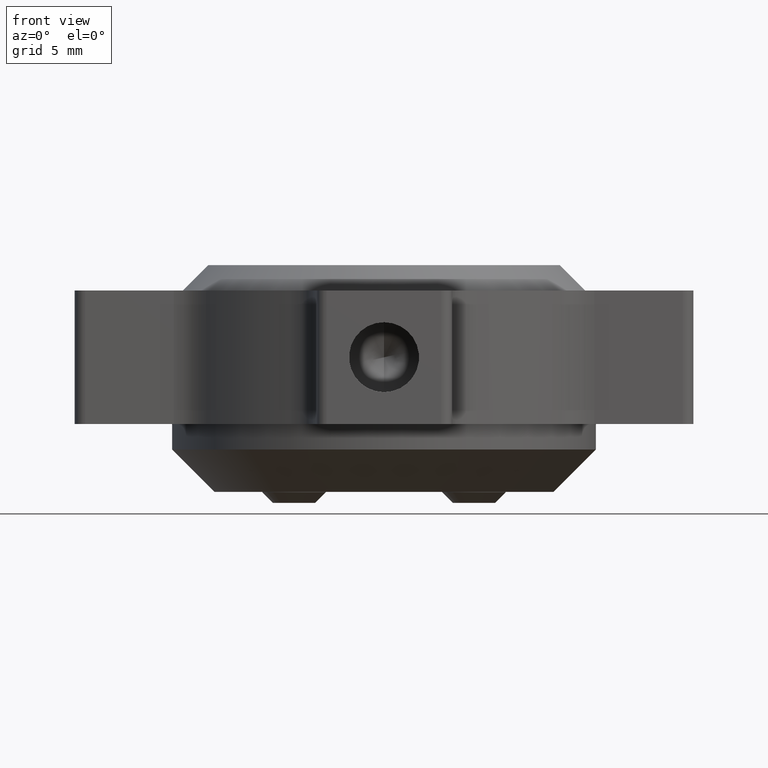
[diagram: clean part render]
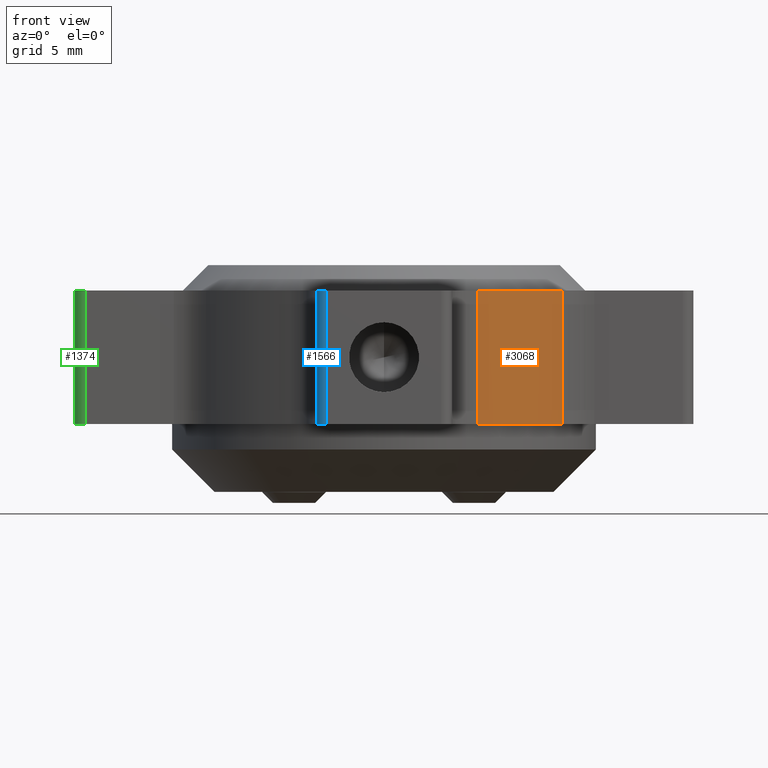
[diagram: same view with three faces highlighted in distinct colors, each labeled with its STEP entity id]
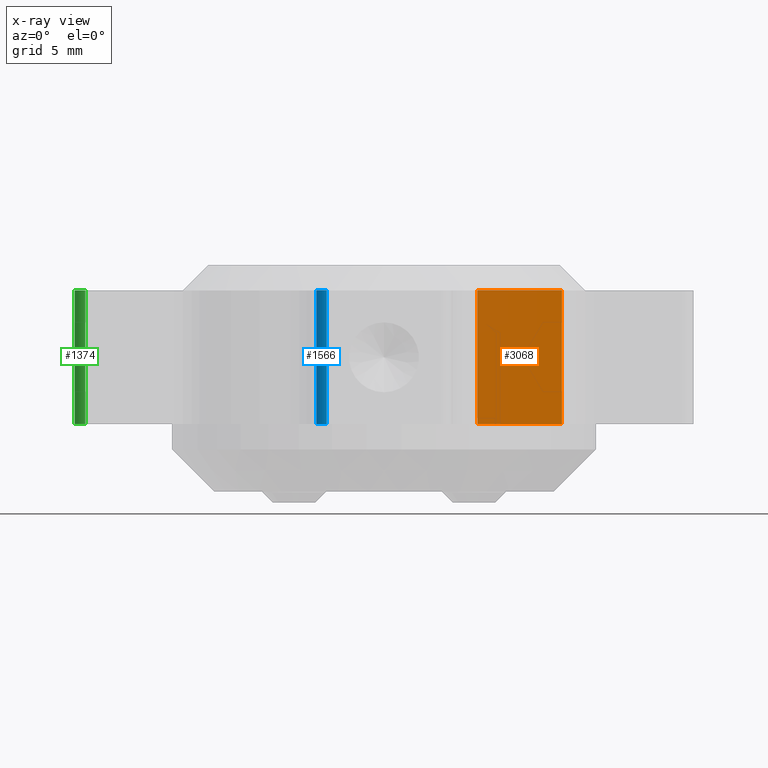
[diagram: x-ray of the same camera — body ghosted, the three highlighted faces saturated]
A machine part, front view with three faces highlighted in distinct colors.
The next image is the same camera in x-ray (body ghosted, the three faces saturated) — at least one of them is partly hidden behind the body in this view.
Their STEP definitions:

[orange] entity #3068 — the highlighted cylindrical surface (partial cylindrical patch) has radius 11 mm, axis along (-0, -0, 1).
#5 = LINE ( 'NONE', #1300, #2120 ) ;
#33 = CARTESIAN_POINT ( 'NONE',  ( 6.478799323053340942, -1.618870935645137843, 27.05000000000000426 ) ) ;
#76 = VERTEX_POINT ( 'NONE', #1882 ) ;
#87 = LINE ( 'NONE', #396, #263 ) ;
#109 = DIRECTION ( 'NONE',  ( 0.000000000000000000, 0.000000000000000000, -1.000000000000000000 ) ) ;
#257 = CARTESIAN_POINT ( 'NONE',  ( -1.916479710973556516, 5.488821372047168801, 33.35000000000000142 ) ) ;
#263 = VECTOR ( 'NONE', #2617, 1000.000000000000000 ) ;
#396 = CARTESIAN_POINT ( 'NONE',  ( 6.478799323053340942, -1.618870935645137843, 23.84900000000000375 ) ) ;
#414 = EDGE_CURVE ( 'NONE', #714, #1253, #87, .T. ) ;
#633 = AXIS2_PLACEMENT_3D ( 'NONE', #1458, #876, #923 ) ;
#714 = VERTEX_POINT ( 'NONE', #33 ) ;
#813 = EDGE_CURVE ( 'NONE', #1253, #2114, #2484, .T. ) ;
#876 = DIRECTION ( 'NONE',  ( -0.000000000000000000, -0.000000000000000000, 1.000000000000000000 ) ) ;
#923 = DIRECTION ( 'NONE',  ( 1.000000000000000000, 0.000000000000000000, 0.000000000000000000 ) ) ;
#938 = CYLINDRICAL_SURFACE ( 'NONE', #633, 11.00000000000000000 ) ;
#1027 = ORIENTED_EDGE ( 'NONE', *, *, #813, .T. ) ;
#1037 = AXIS2_PLACEMENT_3D ( 'NONE', #257, #1271, #1785 ) ;
#1119 = DIRECTION ( 'NONE',  ( -1.000000000000000000, 0.000000000000000000, 0.000000000000000000 ) ) ;
#1205 = ORIENTED_EDGE ( 'NONE', *, *, #1748, .F. ) ;
#1253 = VERTEX_POINT ( 'NONE', #1936 ) ;
#1271 = DIRECTION ( 'NONE',  ( -0.000000000000000000, -0.000000000000000000, -1.000000000000000000 ) ) ;
#1300 = CARTESIAN_POINT ( 'NONE',  ( 2.483520289026443617, -4.592845156855679178, 23.84900000000000375 ) ) ;
#1458 = CARTESIAN_POINT ( 'NONE',  ( -1.916479710973556516, 5.488821372047168801, 23.84900000000000375 ) ) ;
#1614 = ORIENTED_EDGE ( 'NONE', *, *, #414, .T. ) ;
#1748 = EDGE_CURVE ( 'NONE', #714, #76, #3223, .T. ) ;
#1785 = DIRECTION ( 'NONE',  ( 1.000000000000000000, 0.000000000000000000, 0.000000000000000000 ) ) ;
#1882 = CARTESIAN_POINT ( 'NONE',  ( 2.483520289026443617, -4.592845156855677402, 27.05000000000000426 ) ) ;
#1936 = CARTESIAN_POINT ( 'NONE',  ( 6.478799323053340942, -1.618870935645137843, 33.35000000000000142 ) ) ;
#1965 = AXIS2_PLACEMENT_3D ( 'NONE', #2683, #109, #1119 ) ;
#2042 = DIRECTION ( 'NONE',  ( 0.000000000000000000, 0.000000000000000000, -1.000000000000000000 ) ) ;
#2114 = VERTEX_POINT ( 'NONE', #2866 ) ;
#2120 = VECTOR ( 'NONE', #2042, 1000.000000000000000 ) ;
#2484 = CIRCLE ( 'NONE', #1037, 11.00000000000000000 ) ;
#2617 = DIRECTION ( 'NONE',  ( -0.000000000000000000, -0.000000000000000000, 1.000000000000000000 ) ) ;
#2683 = CARTESIAN_POINT ( 'NONE',  ( -1.916479710973556516, 5.488821372047168801, 27.05000000000000426 ) ) ;
#2833 = ORIENTED_EDGE ( 'NONE', *, *, #2963, .T. ) ;
#2866 = CARTESIAN_POINT ( 'NONE',  ( 2.483520289026443617, -4.592845156855677402, 33.35000000000000142 ) ) ;
#2911 = EDGE_LOOP ( 'NONE', ( #1205, #1614, #1027, #2833 ) ) ;
#2963 = EDGE_CURVE ( 'NONE', #2114, #76, #5, .T. ) ;
#3068 = ADVANCED_FACE ( 'NONE', ( #3210 ), #938, .T. ) ;
#3210 = FACE_OUTER_BOUND ( 'NONE', #2911, .T. ) ;
#3223 = CIRCLE ( 'NONE', #1965, 11.00000000000000000 ) ;

[blue] entity #1566 — the highlighted cylindrical surface (edge-blend (fillet) strip) has radius 0.5 mm, axis along (0, 0, 1).
#60 = DIRECTION ( 'NONE',  ( 0.000000000000000000, 0.000000000000000000, 1.000000000000000000 ) ) ;
#143 = CIRCLE ( 'NONE', #517, 0.5000000000000004441 ) ;
#324 = EDGE_CURVE ( 'NONE', #983, #353, #742, .T. ) ;
#344 = CARTESIAN_POINT ( 'NONE',  ( -5.116479710973556472, -8.611178627952831732, 23.84900000000000375 ) ) ;
#353 = VERTEX_POINT ( 'NONE', #2076 ) ;
#477 = ORIENTED_EDGE ( 'NONE', *, *, #1318, .F. ) ;
#516 = CARTESIAN_POINT ( 'NONE',  ( -5.116479710973556472, -8.611178627952831732, 33.35000000000000142 ) ) ;
#517 = AXIS2_PLACEMENT_3D ( 'NONE', #1554, #1506, #3043 ) ;
#626 = CARTESIAN_POINT ( 'NONE',  ( -5.116479710973556472, -8.611178627952831732, 27.05000000000000426 ) ) ;
#679 = ORIENTED_EDGE ( 'NONE', *, *, #2132, .F. ) ;
#742 = CIRCLE ( 'NONE', #2858, 0.5000000000000004441 ) ;
#754 = EDGE_CURVE ( 'NONE', #2658, #1651, #143, .T. ) ;
#983 = VERTEX_POINT ( 'NONE', #516 ) ;
#1085 = ORIENTED_EDGE ( 'NONE', *, *, #754, .F. ) ;
#1279 = FACE_OUTER_BOUND ( 'NONE', #2401, .T. ) ;
#1318 = EDGE_CURVE ( 'NONE', #353, #2658, #2885, .T. ) ;
#1349 = DIRECTION ( 'NONE',  ( 0.000000000000000000, -0.000000000000000000, 1.000000000000000000 ) ) ;
#1506 = DIRECTION ( 'NONE',  ( 0.000000000000000000, 0.000000000000000000, -1.000000000000000000 ) ) ;
#1554 = CARTESIAN_POINT ( 'NONE',  ( -4.616479710973555584, -8.611178627952831732, 27.05000000000000426 ) ) ;
#1560 = CYLINDRICAL_SURFACE ( 'NONE', #2167, 0.5000000000000004441 ) ;
#1566 = ADVANCED_FACE ( 'NONE', ( #1279 ), #1560, .T. ) ;
#1635 = VECTOR ( 'NONE', #2196, 1000.000000000000000 ) ;
#1651 = VERTEX_POINT ( 'NONE', #626 ) ;
#1819 = ORIENTED_EDGE ( 'NONE', *, *, #324, .F. ) ;
#2009 = VECTOR ( 'NONE', #1349, 1000.000000000000000 ) ;
#2076 = CARTESIAN_POINT ( 'NONE',  ( -4.616479710973555584, -9.111178627952831732, 33.35000000000000142 ) ) ;
#2132 = EDGE_CURVE ( 'NONE', #1651, #983, #2613, .T. ) ;
#2167 = AXIS2_PLACEMENT_3D ( 'NONE', #2294, #2849, #2835 ) ;
#2196 = DIRECTION ( 'NONE',  ( -0.000000000000000000, 0.000000000000000000, -1.000000000000000000 ) ) ;
#2294 = CARTESIAN_POINT ( 'NONE',  ( -4.616479710973555584, -8.611178627952831732, 23.84900000000000375 ) ) ;
#2401 = EDGE_LOOP ( 'NONE', ( #1085, #477, #1819, #679 ) ) ;
#2558 = CARTESIAN_POINT ( 'NONE',  ( -4.616479710973555584, -8.611178627952831732, 33.35000000000000142 ) ) ;
#2613 = LINE ( 'NONE', #344, #2009 ) ;
#2639 = CARTESIAN_POINT ( 'NONE',  ( -4.616479710973555584, -9.111178627952831732, 34.55000000000000426 ) ) ;
#2658 = VERTEX_POINT ( 'NONE', #2978 ) ;
#2835 = DIRECTION ( 'NONE',  ( 1.000000000000000000, 0.000000000000000000, 0.000000000000000000 ) ) ;
#2848 = DIRECTION ( 'NONE',  ( 1.000000000000000000, 0.000000000000000000, 0.000000000000000000 ) ) ;
#2849 = DIRECTION ( 'NONE',  ( 0.000000000000000000, 0.000000000000000000, 1.000000000000000000 ) ) ;
#2858 = AXIS2_PLACEMENT_3D ( 'NONE', #2558, #60, #2848 ) ;
#2885 = LINE ( 'NONE', #2639, #1635 ) ;
#2978 = CARTESIAN_POINT ( 'NONE',  ( -4.616479710973555584, -9.111178627952831732, 27.05000000000000426 ) ) ;
#3043 = DIRECTION ( 'NONE',  ( -1.000000000000000000, 0.000000000000000000, 0.000000000000000000 ) ) ;

[green] entity #1374 — the highlighted cylindrical surface (edge-blend (fillet) strip) has radius 0.5 mm, axis along (0, 0, 1).
#146 = DIRECTION ( 'NONE',  ( 0.000000000000000000, 0.000000000000000000, 1.000000000000000000 ) ) ;
#379 = ORIENTED_EDGE ( 'NONE', *, *, #2981, .F. ) ;
#500 = DIRECTION ( 'NONE',  ( -1.000000000000000000, 0.000000000000000000, 0.000000000000000000 ) ) ;
#577 = AXIS2_PLACEMENT_3D ( 'NONE', #2759, #3235, #500 ) ;
#843 = ORIENTED_EDGE ( 'NONE', *, *, #1413, .F. ) ;
#849 = CARTESIAN_POINT ( 'NONE',  ( -16.01647971097355949, -0.9111786279528311105, 27.05000000000000426 ) ) ;
#882 = CARTESIAN_POINT ( 'NONE',  ( -16.01647971097355949, -0.4111786279528315546, 34.55000000000000426 ) ) ;
#947 = CIRCLE ( 'NONE', #2801, 0.5000000000000004441 ) ;
#1024 = CARTESIAN_POINT ( 'NONE',  ( -16.01647971097355949, -0.9111786279528311105, 23.84900000000000375 ) ) ;
#1195 = EDGE_CURVE ( 'NONE', #2842, #2743, #1280, .T. ) ;
#1280 = LINE ( 'NONE', #1024, #3116 ) ;
#1374 = ADVANCED_FACE ( 'NONE', ( #1883 ), #3153, .T. ) ;
#1413 = EDGE_CURVE ( 'NONE', #1563, #2842, #947, .T. ) ;
#1424 = EDGE_CURVE ( 'NONE', #2743, #1846, #3171, .T. ) ;
#1425 = CARTESIAN_POINT ( 'NONE',  ( -16.01647971097355949, -0.9111786279528311105, 33.35000000000000142 ) ) ;
#1450 = DIRECTION ( 'NONE',  ( 0.000000000000000000, 0.000000000000000000, 1.000000000000000000 ) ) ;
#1464 = CARTESIAN_POINT ( 'NONE',  ( -16.01647971097355949, -0.4111786279528315546, 33.35000000000000142 ) ) ;
#1469 = CARTESIAN_POINT ( 'NONE',  ( -16.51647971097355949, -0.4111786279528315546, 34.55000000000000426 ) ) ;
#1498 = DIRECTION ( 'NONE',  ( 1.000000000000000000, 0.000000000000000000, 0.000000000000000000 ) ) ;
#1563 = VERTEX_POINT ( 'NONE', #1841 ) ;
#1735 = DIRECTION ( 'NONE',  ( 0.000000000000000000, 0.000000000000000000, 1.000000000000000000 ) ) ;
#1810 = ORIENTED_EDGE ( 'NONE', *, *, #1424, .F. ) ;
#1841 = CARTESIAN_POINT ( 'NONE',  ( -16.51647971097355949, -0.4111786279528315546, 33.35000000000000142 ) ) ;
#1846 = VERTEX_POINT ( 'NONE', #2970 ) ;
#1857 = EDGE_LOOP ( 'NONE', ( #1810, #3099, #843, #379 ) ) ;
#1883 = FACE_OUTER_BOUND ( 'NONE', #1857, .T. ) ;
#1919 = DIRECTION ( 'NONE',  ( 1.000000000000000000, 0.000000000000000000, 0.000000000000000000 ) ) ;
#2048 = DIRECTION ( 'NONE',  ( -0.000000000000000000, -0.000000000000000000, -1.000000000000000000 ) ) ;
#2436 = AXIS2_PLACEMENT_3D ( 'NONE', #882, #146, #1919 ) ;
#2544 = VECTOR ( 'NONE', #1735, 1000.000000000000000 ) ;
#2729 = LINE ( 'NONE', #1469, #2544 ) ;
#2743 = VERTEX_POINT ( 'NONE', #849 ) ;
#2759 = CARTESIAN_POINT ( 'NONE',  ( -16.01647971097355949, -0.4111786279528315546, 27.05000000000000426 ) ) ;
#2801 = AXIS2_PLACEMENT_3D ( 'NONE', #1464, #1450, #1498 ) ;
#2842 = VERTEX_POINT ( 'NONE', #1425 ) ;
#2970 = CARTESIAN_POINT ( 'NONE',  ( -16.51647971097355949, -0.4111786279528315546, 27.05000000000000426 ) ) ;
#2981 = EDGE_CURVE ( 'NONE', #1846, #1563, #2729, .T. ) ;
#3099 = ORIENTED_EDGE ( 'NONE', *, *, #1195, .F. ) ;
#3116 = VECTOR ( 'NONE', #2048, 1000.000000000000000 ) ;
#3153 = CYLINDRICAL_SURFACE ( 'NONE', #2436, 0.5000000000000004441 ) ;
#3171 = CIRCLE ( 'NONE', #577, 0.5000000000000004441 ) ;
#3235 = DIRECTION ( 'NONE',  ( 0.000000000000000000, 0.000000000000000000, -1.000000000000000000 ) ) ;